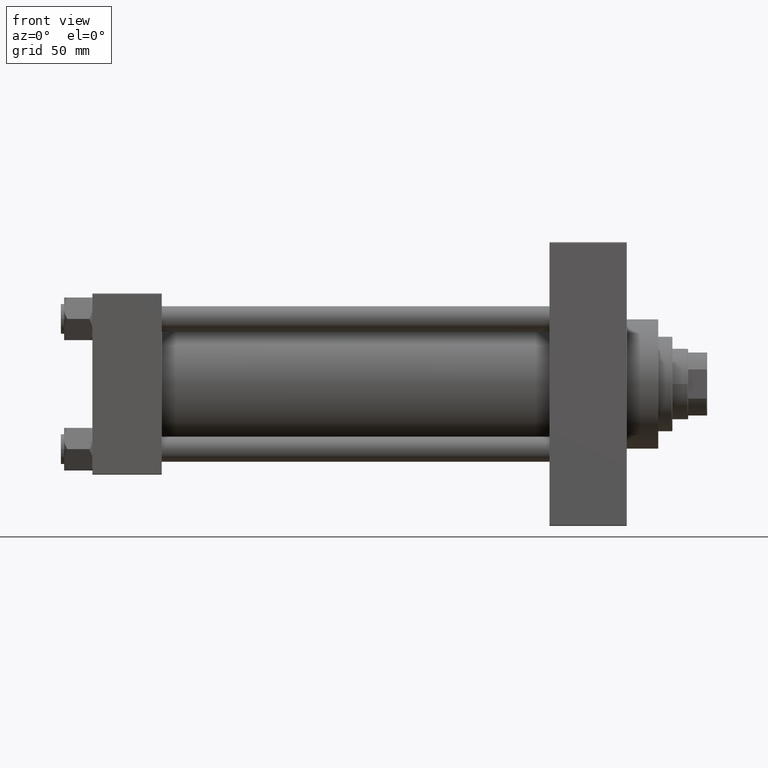
[diagram: clean part render]
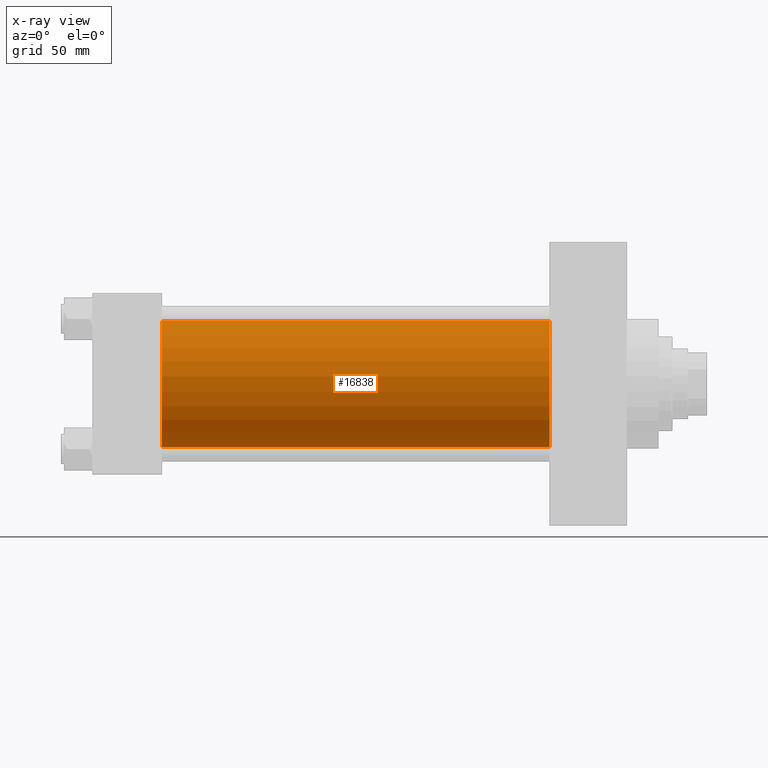
[diagram: x-ray — body ghosted, one internal face saturated and labeled with its STEP entity id]
A machine part, front view, then the same camera in x-ray: the body is ghosted and one INTERNAL B-rep face — a face not visible from any outside direction — is saturated and labeled: STEP entity #16838.
In plain terms, the highlighted cylindrical surface (partial cylindrical patch) has radius 40 mm, axis along (-1, -0, -0).
Its self-contained STEP definition (entity closure, byte-faithful):
#2025 = EDGE_LOOP ( 'NONE', ( #26962, #25951, #4165, #14024 ) ) ;
#4165 = ORIENTED_EDGE ( 'NONE', *, *, #33413, .F. ) ;
#5413 = EDGE_CURVE ( 'NONE', #46142, #29825, #35490, .T. ) ;
#6401 = VECTOR ( 'NONE', #30603, 1000.000000000000000 ) ;
#6736 = CYLINDRICAL_SURFACE ( 'NONE', #45517, 40.00000000000000000 ) ;
#7600 = AXIS2_PLACEMENT_3D ( 'NONE', #23727, #20412, #19662 ) ;
#10787 = DIRECTION ( 'NONE',  ( 0.000000000000000000, 0.000000000000000000, 1.000000000000000000 ) ) ;
#11322 = VECTOR ( 'NONE', #35989, 1000.000000000000000 ) ;
#13090 = CARTESIAN_POINT ( 'NONE',  ( 290.0000000000000000, 2.296501982624201990E-15, -40.00000000000000000 ) ) ;
#14024 = ORIENTED_EDGE ( 'NONE', *, *, #46900, .F. ) ;
#14583 = DIRECTION ( 'NONE',  ( -1.000000000000000000, -0.000000000000000000, -0.000000000000000000 ) ) ;
#16105 = CARTESIAN_POINT ( 'NONE',  ( 44.00000000000000000, -2.602085213965210642E-15, 40.00000000000000000 ) ) ;
#16838 = ADVANCED_FACE ( 'NONE', ( #49190 ), #6736, .F. ) ;
#17371 = VERTEX_POINT ( 'NONE', #42330 ) ;
#18379 = CARTESIAN_POINT ( 'NONE',  ( 290.0000000000000000, -2.602085213965210642E-15, 0.000000000000000000 ) ) ;
#19662 = DIRECTION ( 'NONE',  ( 0.000000000000000000, 0.000000000000000000, -1.000000000000000000 ) ) ;
#20412 = DIRECTION ( 'NONE',  ( 1.000000000000000000, 0.000000000000000000, 0.000000000000000000 ) ) ;
#23727 = CARTESIAN_POINT ( 'NONE',  ( 290.0000000000000000, -2.602085213965210642E-15, 0.000000000000000000 ) ) ;
#24810 = EDGE_CURVE ( 'NONE', #17371, #46142, #27816, .T. ) ;
#25951 = ORIENTED_EDGE ( 'NONE', *, *, #5413, .T. ) ;
#26426 = CARTESIAN_POINT ( 'NONE',  ( 44.00000000000000000, 2.296501982624201990E-15, -40.00000000000000000 ) ) ;
#26828 = LINE ( 'NONE', #31612, #6401 ) ;
#26962 = ORIENTED_EDGE ( 'NONE', *, *, #24810, .T. ) ;
#27227 = CARTESIAN_POINT ( 'NONE',  ( 44.00000000000000000, -2.602085213965210642E-15, 0.000000000000000000 ) ) ;
#27816 = CIRCLE ( 'NONE', #7600, 40.00000000000000000 ) ;
#29825 = VERTEX_POINT ( 'NONE', #26426 ) ;
#30603 = DIRECTION ( 'NONE',  ( -1.000000000000000000, -0.000000000000000000, -0.000000000000000000 ) ) ;
#30771 = DIRECTION ( 'NONE',  ( 1.000000000000000000, 0.000000000000000000, 0.000000000000000000 ) ) ;
#31612 = CARTESIAN_POINT ( 'NONE',  ( 290.0000000000000000, -2.602085213965210642E-15, 40.00000000000000000 ) ) ;
#33413 = EDGE_CURVE ( 'NONE', #47180, #29825, #40892, .T. ) ;
#34465 = AXIS2_PLACEMENT_3D ( 'NONE', #27227, #30771, #38338 ) ;
#35490 = LINE ( 'NONE', #47561, #11322 ) ;
#35989 = DIRECTION ( 'NONE',  ( -1.000000000000000000, -0.000000000000000000, -0.000000000000000000 ) ) ;
#38338 = DIRECTION ( 'NONE',  ( 0.000000000000000000, 0.000000000000000000, -1.000000000000000000 ) ) ;
#40892 = CIRCLE ( 'NONE', #34465, 40.00000000000000000 ) ;
#42330 = CARTESIAN_POINT ( 'NONE',  ( 290.0000000000000000, -2.602085213965210642E-15, 40.00000000000000000 ) ) ;
#45517 = AXIS2_PLACEMENT_3D ( 'NONE', #18379, #14583, #10787 ) ;
#46142 = VERTEX_POINT ( 'NONE', #13090 ) ;
#46900 = EDGE_CURVE ( 'NONE', #17371, #47180, #26828, .T. ) ;
#47180 = VERTEX_POINT ( 'NONE', #16105 ) ;
#47561 = CARTESIAN_POINT ( 'NONE',  ( 290.0000000000000000, 2.296501982624201990E-15, -40.00000000000000000 ) ) ;
#49190 = FACE_OUTER_BOUND ( 'NONE', #2025, .T. ) ;